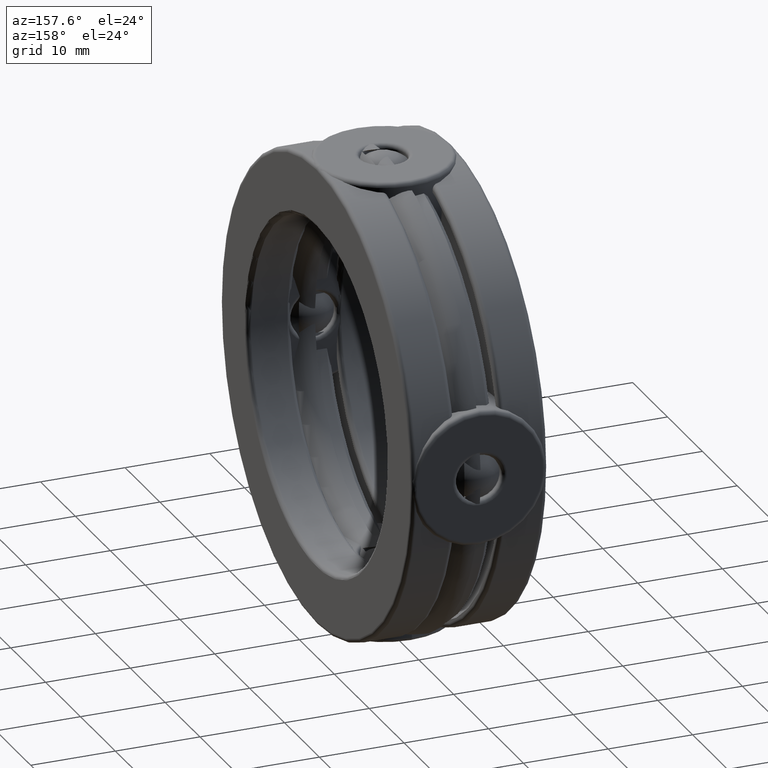
[diagram: clean part render]
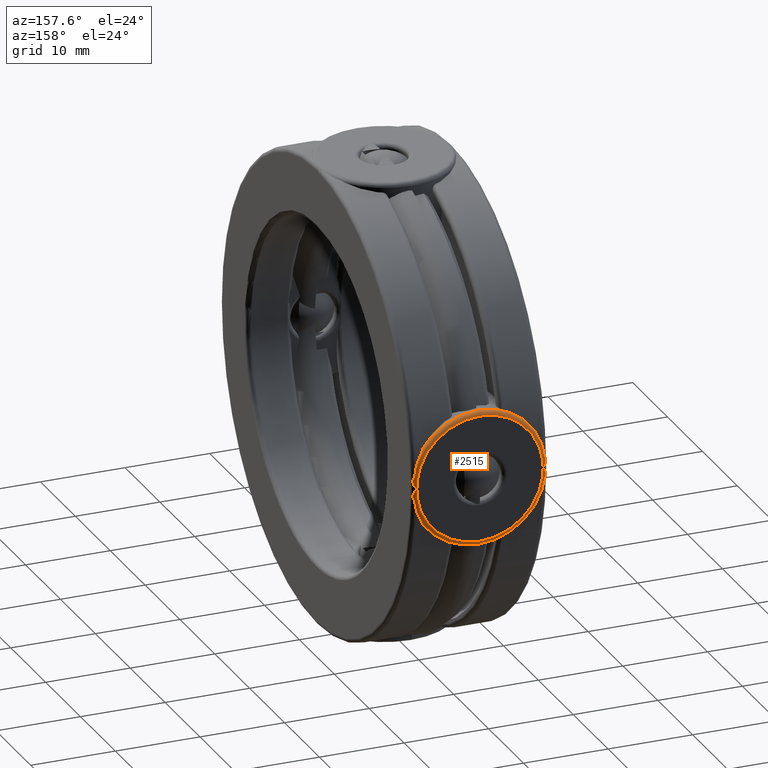
[diagram: same view with one face highlighted and labeled with its STEP entity id]
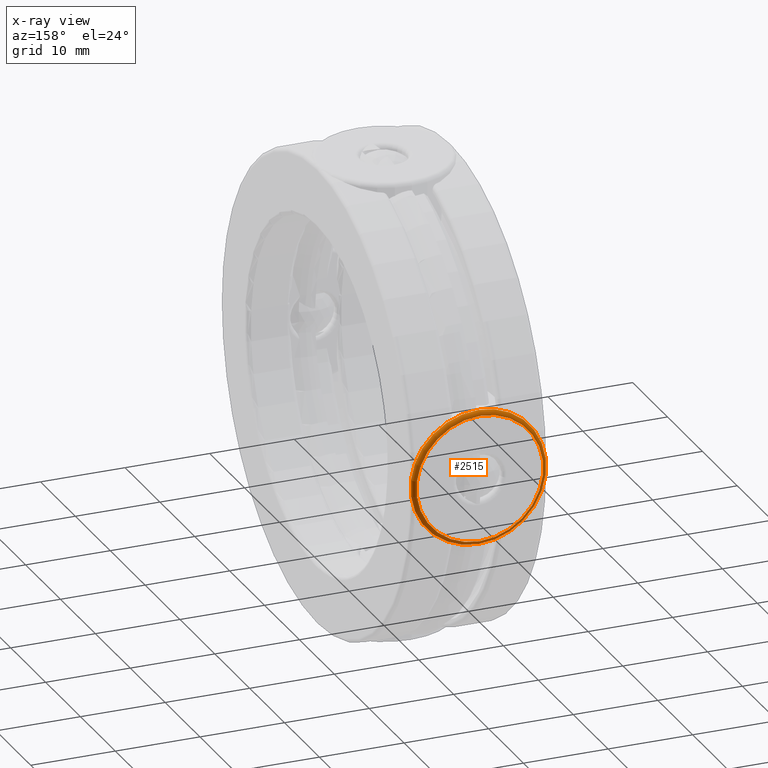
[diagram: x-ray of the same camera — body ghosted, the highlighted face saturated]
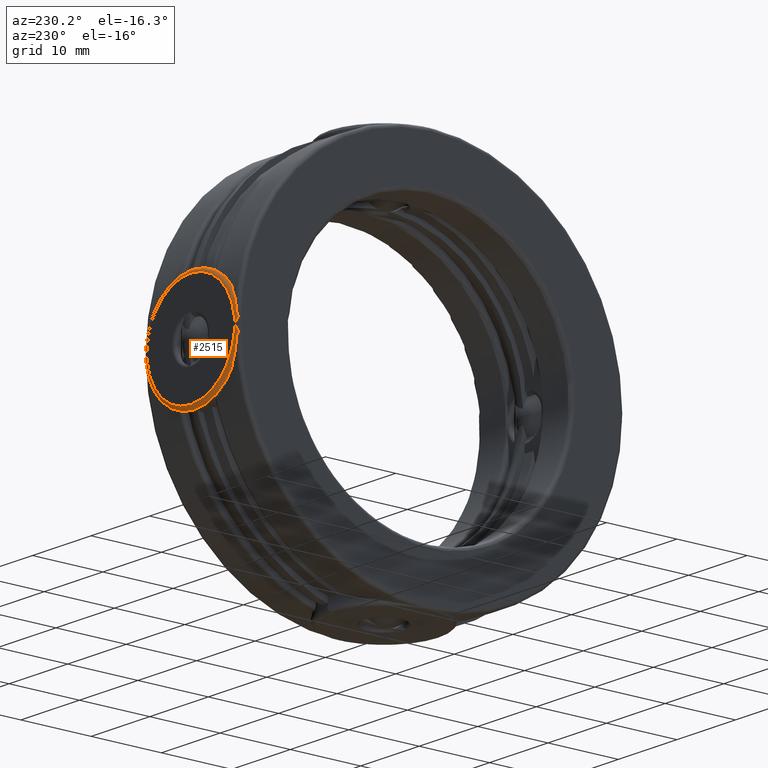
[diagram: same view with one face highlighted and labeled with its STEP entity id]
A machine part, auxiliary view. The second image highlights one B-rep face of the part: STEP entity #2515.
The next image is the same camera in x-ray: the body ghosted, the highlighted face saturated — about 0% of this face is hidden behind the body in this view.
A second angle (auxiliary view) of the same face is appended — the face is thin or edge-on in the first view.
In plain terms, the highlighted toroidal blend (fillet) surface has major radius 7.493 mm and minor (blend) radius 0.508 mm.
Its self-contained STEP definition (entity closure, byte-faithful):
#441 = VERTEX_POINT ( 'NONE', #784 ) ;
#519 = DIRECTION ( 'NONE',  ( 0.0000000000000000000, 0.0000000000000000000, 1.000000000000000000 ) ) ;
#603 = EDGE_LOOP ( 'NONE', ( #3113 ) ) ;
#758 = DIRECTION ( 'NONE',  ( -0.0000000000000000000, 1.000000000000000000, -0.0000000000000000000 ) ) ;
#784 = CARTESIAN_POINT ( 'NONE',  ( 0.0000000000000000000, 1.082500000000000200, 0.2950000000000006000 ) ) ;
#952 = AXIS2_PLACEMENT_3D ( 'NONE', #2468, #758, #993 ) ;
#993 = DIRECTION ( 'NONE',  ( 0.0000000000000000000, 0.0000000000000000000, 1.000000000000000000 ) ) ;
#1223 = CIRCLE ( 'NONE', #3212, 0.2950000000000006000 ) ;
#1257 = AXIS2_PLACEMENT_3D ( 'NONE', #3139, #1928, #1914 ) ;
#1447 = EDGE_LOOP ( 'NONE', ( #1577 ) ) ;
#1577 = ORIENTED_EDGE ( 'NONE', *, *, #3185, .T. ) ;
#1848 = CIRCLE ( 'NONE', #952, 0.3150000000000000600 ) ;
#1889 = TOROIDAL_SURFACE ( 'NONE', #1257, 0.2950000000000006000, 0.01999999999999968500 ) ;
#1914 = DIRECTION ( 'NONE',  ( 0.0000000000000000000, 0.0000000000000000000, 1.000000000000000000 ) ) ;
#1928 = DIRECTION ( 'NONE',  ( -0.0000000000000000000, 1.000000000000000000, -0.0000000000000000000 ) ) ;
#2006 = CARTESIAN_POINT ( 'NONE',  ( 0.0000000000000000000, 1.082500000000000200, 0.0000000000000000000 ) ) ;
#2251 = EDGE_CURVE ( 'NONE', #441, #441, #1223, .T. ) ;
#2468 = CARTESIAN_POINT ( 'NONE',  ( 0.0000000000000000000, 1.062500000000000400, 0.0000000000000000000 ) ) ;
#2515 = ADVANCED_FACE ( 'NONE', ( #3111, #2810 ), #1889, .T. ) ;
#2518 = CARTESIAN_POINT ( 'NONE',  ( 0.0000000000000000000, 1.062500000000000400, 0.3150000000000000600 ) ) ;
#2528 = DIRECTION ( 'NONE',  ( -0.0000000000000000000, 1.000000000000000000, -0.0000000000000000000 ) ) ;
#2731 = VERTEX_POINT ( 'NONE', #2518 ) ;
#2810 = FACE_OUTER_BOUND ( 'NONE', #1447, .T. ) ;
#3111 = FACE_OUTER_BOUND ( 'NONE', #603, .T. ) ;
#3113 = ORIENTED_EDGE ( 'NONE', *, *, #2251, .F. ) ;
#3139 = CARTESIAN_POINT ( 'NONE',  ( 0.0000000000000000000, 1.062500000000000400, 0.0000000000000000000 ) ) ;
#3185 = EDGE_CURVE ( 'NONE', #2731, #2731, #1848, .T. ) ;
#3212 = AXIS2_PLACEMENT_3D ( 'NONE', #2006, #2528, #519 ) ;